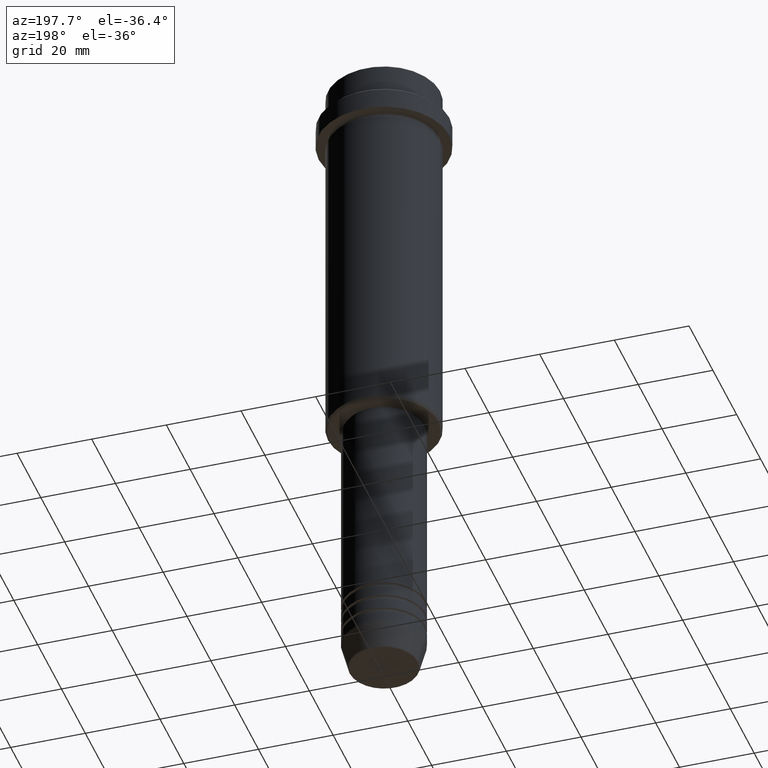
[diagram: clean part render]
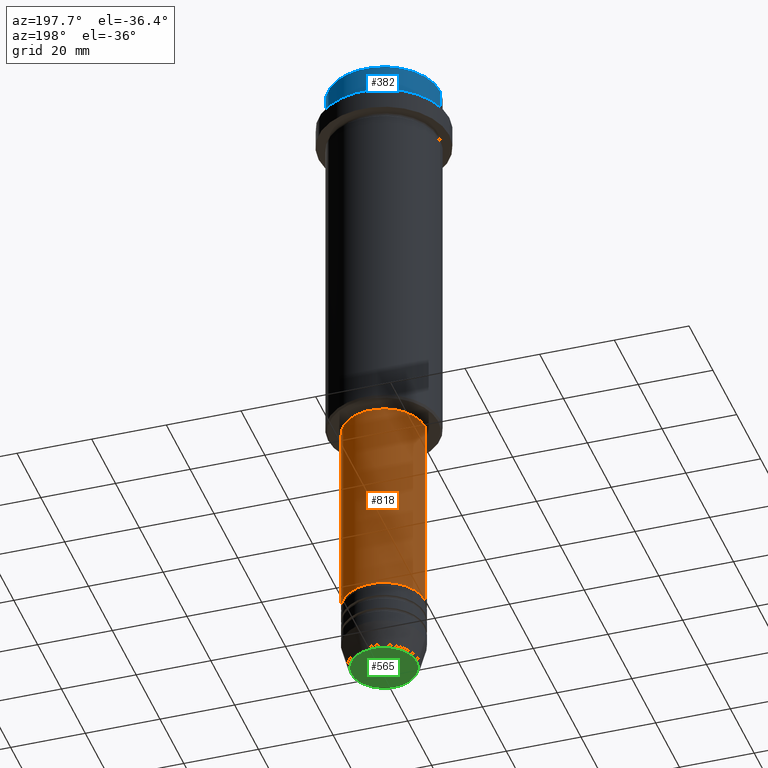
[diagram: same view with three faces highlighted in distinct colors, each labeled with its STEP entity id]
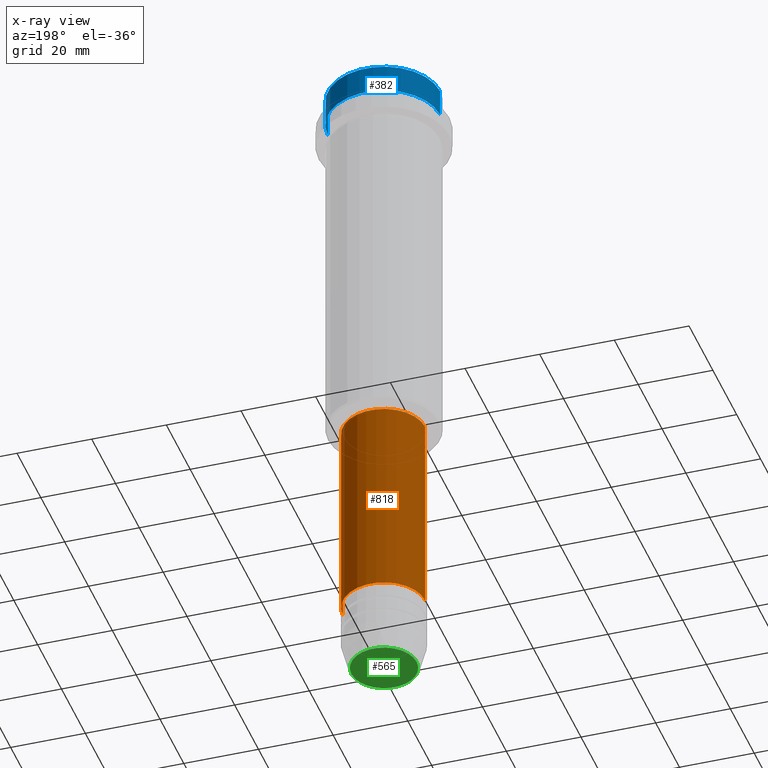
[diagram: x-ray of the same camera — body ghosted, the three highlighted faces saturated]
A machine part, auxiliary view with three faces highlighted in distinct colors.
The next image is the same camera in x-ray (body ghosted, the three faces saturated) — at least one of them is partly hidden behind the body in this view.
Their STEP definitions:

[orange] entity #818 — the highlighted cylindrical surface (partial cylindrical patch) has radius 11 mm, axis along (-0, -0, 1).
#25 = CIRCLE ( 'NONE', #1099, 11.00000000000000000 ) ;
#131 = DIRECTION ( 'NONE',  ( 1.000000000000000000, 0.000000000000000000, 0.000000000000000000 ) ) ;
#176 = VERTEX_POINT ( 'NONE', #394 ) ;
#230 = DIRECTION ( 'NONE',  ( -0.000000000000000000, -0.000000000000000000, 1.000000000000000000 ) ) ;
#235 = VECTOR ( 'NONE', #379, 1000.000000000000000 ) ;
#246 = VERTEX_POINT ( 'NONE', #1207 ) ;
#275 = ORIENTED_EDGE ( 'NONE', *, *, #629, .T. ) ;
#280 = ORIENTED_EDGE ( 'NONE', *, *, #892, .F. ) ;
#299 = DIRECTION ( 'NONE',  ( -0.000000000000000000, -0.000000000000000000, 1.000000000000000000 ) ) ;
#342 = AXIS2_PLACEMENT_3D ( 'NONE', #378, #683, #131 ) ;
#365 = CIRCLE ( 'NONE', #1164, 10.99999999999999822 ) ;
#378 = CARTESIAN_POINT ( 'NONE',  ( 0.000000000000000000, 0.000000000000000000, 0.000000000000000000 ) ) ;
#379 = DIRECTION ( 'NONE',  ( -0.000000000000000000, -0.000000000000000000, 1.000000000000000000 ) ) ;
#394 = CARTESIAN_POINT ( 'NONE',  ( -10.99999999999999822, 1.347111479062088207E-15, -106.0000000000000142 ) ) ;
#395 = DIRECTION ( 'NONE',  ( -0.000000000000000000, -0.000000000000000000, 1.000000000000000000 ) ) ;
#458 = LINE ( 'NONE', #1225, #646 ) ;
#468 = CYLINDRICAL_SURFACE ( 'NONE', #342, 11.00000000000000000 ) ;
#495 = CARTESIAN_POINT ( 'NONE',  ( -11.00000000000000000, 1.347111479062088405E-15, -160.9999999999999147 ) ) ;
#514 = EDGE_CURVE ( 'NONE', #985, #176, #930, .T. ) ;
#576 = ORIENTED_EDGE ( 'NONE', *, *, #1145, .F. ) ;
#629 = EDGE_CURVE ( 'NONE', #1030, #985, #25, .T. ) ;
#646 = VECTOR ( 'NONE', #230, 1000.000000000000000 ) ;
#683 = DIRECTION ( 'NONE',  ( -0.000000000000000000, -0.000000000000000000, 1.000000000000000000 ) ) ;
#715 = CARTESIAN_POINT ( 'NONE',  ( 11.00000000000000000, 0.000000000000000000, -160.9999999999999147 ) ) ;
#759 = DIRECTION ( 'NONE',  ( 1.000000000000000000, 0.000000000000000000, 0.000000000000000000 ) ) ;
#818 = ADVANCED_FACE ( 'NONE', ( #1043 ), #468, .T. ) ;
#883 = ORIENTED_EDGE ( 'NONE', *, *, #514, .T. ) ;
#892 = EDGE_CURVE ( 'NONE', #246, #176, #365, .T. ) ;
#930 = LINE ( 'NONE', #1353, #235 ) ;
#985 = VERTEX_POINT ( 'NONE', #495 ) ;
#1030 = VERTEX_POINT ( 'NONE', #715 ) ;
#1043 = FACE_OUTER_BOUND ( 'NONE', #1066, .T. ) ;
#1066 = EDGE_LOOP ( 'NONE', ( #275, #883, #280, #576 ) ) ;
#1099 = AXIS2_PLACEMENT_3D ( 'NONE', #1103, #299, #1398 ) ;
#1103 = CARTESIAN_POINT ( 'NONE',  ( 0.000000000000000000, 0.000000000000000000, -160.9999999999999147 ) ) ;
#1145 = EDGE_CURVE ( 'NONE', #1030, #246, #458, .T. ) ;
#1164 = AXIS2_PLACEMENT_3D ( 'NONE', #1295, #395, #759 ) ;
#1207 = CARTESIAN_POINT ( 'NONE',  ( 10.99999999999999822, 0.000000000000000000, -106.0000000000000142 ) ) ;
#1225 = CARTESIAN_POINT ( 'NONE',  ( 11.00000000000000000, 0.000000000000000000, 0.000000000000000000 ) ) ;
#1295 = CARTESIAN_POINT ( 'NONE',  ( 0.000000000000000000, 0.000000000000000000, -106.0000000000000142 ) ) ;
#1353 = CARTESIAN_POINT ( 'NONE',  ( -11.00000000000000000, 1.347111479062088405E-15, 0.000000000000000000 ) ) ;
#1398 = DIRECTION ( 'NONE',  ( 1.000000000000000000, 0.000000000000000000, 0.000000000000000000 ) ) ;

[blue] entity #382 — the highlighted cylindrical surface (partial cylindrical patch) has radius 15 mm, axis along (-0, -0, 1).
#86 = AXIS2_PLACEMENT_3D ( 'NONE', #682, #402, #820 ) ;
#87 = EDGE_CURVE ( 'NONE', #840, #1182, #990, .T. ) ;
#111 = DIRECTION ( 'NONE',  ( -0.000000000000000000, -0.000000000000000000, 1.000000000000000000 ) ) ;
#162 = DIRECTION ( 'NONE',  ( 1.000000000000000000, 0.000000000000000000, 0.000000000000000000 ) ) ;
#189 = ORIENTED_EDGE ( 'NONE', *, *, #87, .F. ) ;
#209 = CARTESIAN_POINT ( 'NONE',  ( 15.00000000000000000, 0.000000000000000000, 0.000000000000000000 ) ) ;
#215 = VECTOR ( 'NONE', #1298, 1000.000000000000000 ) ;
#219 = AXIS2_PLACEMENT_3D ( 'NONE', #1027, #335, #162 ) ;
#262 = VECTOR ( 'NONE', #111, 1000.000000000000000 ) ;
#335 = DIRECTION ( 'NONE',  ( 0.000000000000000000, 0.000000000000000000, -1.000000000000000000 ) ) ;
#350 = VERTEX_POINT ( 'NONE', #1128 ) ;
#354 = CYLINDRICAL_SURFACE ( 'NONE', #86, 15.00000000000000000 ) ;
#382 = ADVANCED_FACE ( 'NONE', ( #462 ), #354, .T. ) ;
#402 = DIRECTION ( 'NONE',  ( -0.000000000000000000, -0.000000000000000000, 1.000000000000000000 ) ) ;
#462 = FACE_OUTER_BOUND ( 'NONE', #1345, .T. ) ;
#490 = CARTESIAN_POINT ( 'NONE',  ( -15.00000000000000000, 1.836970198721029589E-15, -0.4999999999999831246 ) ) ;
#512 = VERTEX_POINT ( 'NONE', #490 ) ;
#559 = DIRECTION ( 'NONE',  ( 1.000000000000000000, 0.000000000000000000, 0.000000000000000000 ) ) ;
#616 = EDGE_CURVE ( 'NONE', #512, #1182, #997, .T. ) ;
#631 = CARTESIAN_POINT ( 'NONE',  ( 15.00000000000000000, 0.000000000000000000, -0.4999999999999831246 ) ) ;
#670 = AXIS2_PLACEMENT_3D ( 'NONE', #671, #1107, #559 ) ;
#671 = CARTESIAN_POINT ( 'NONE',  ( 0.000000000000000000, 0.000000000000000000, -7.999999999999998224 ) ) ;
#672 = EDGE_CURVE ( 'NONE', #350, #512, #1067, .T. ) ;
#682 = CARTESIAN_POINT ( 'NONE',  ( 0.000000000000000000, 0.000000000000000000, 0.000000000000000000 ) ) ;
#725 = ORIENTED_EDGE ( 'NONE', *, *, #1354, .T. ) ;
#807 = ORIENTED_EDGE ( 'NONE', *, *, #672, .T. ) ;
#820 = DIRECTION ( 'NONE',  ( 1.000000000000000000, 0.000000000000000000, 0.000000000000000000 ) ) ;
#840 = VERTEX_POINT ( 'NONE', #1183 ) ;
#855 = CARTESIAN_POINT ( 'NONE',  ( -15.00000000000000000, 1.836970198721029589E-15, 0.000000000000000000 ) ) ;
#990 = LINE ( 'NONE', #209, #215 ) ;
#997 = CIRCLE ( 'NONE', #219, 15.00000000000000000 ) ;
#1027 = CARTESIAN_POINT ( 'NONE',  ( 0.000000000000000000, 0.000000000000000000, -0.4999999999999831246 ) ) ;
#1067 = LINE ( 'NONE', #855, #262 ) ;
#1082 = ORIENTED_EDGE ( 'NONE', *, *, #616, .T. ) ;
#1107 = DIRECTION ( 'NONE',  ( -0.000000000000000000, -0.000000000000000000, 1.000000000000000000 ) ) ;
#1128 = CARTESIAN_POINT ( 'NONE',  ( -15.00000000000000000, 1.836970198721029589E-15, -7.999999999999998224 ) ) ;
#1182 = VERTEX_POINT ( 'NONE', #631 ) ;
#1183 = CARTESIAN_POINT ( 'NONE',  ( 15.00000000000000000, 0.000000000000000000, -7.999999999999998224 ) ) ;
#1298 = DIRECTION ( 'NONE',  ( -0.000000000000000000, -0.000000000000000000, 1.000000000000000000 ) ) ;
#1345 = EDGE_LOOP ( 'NONE', ( #725, #807, #1082, #189 ) ) ;
#1354 = EDGE_CURVE ( 'NONE', #840, #350, #1372, .T. ) ;
#1372 = CIRCLE ( 'NONE', #670, 15.00000000000000000 ) ;

[green] entity #565 — the highlighted planar face has unit normal (0, -0, 1).
#75 = ORIENTED_EDGE ( 'NONE', *, *, #814, .T. ) ;
#232 = DIRECTION ( 'NONE',  ( 0.000000000000000000, 0.000000000000000000, -1.000000000000000000 ) ) ;
#250 = CARTESIAN_POINT ( 'NONE',  ( 0.000000000000000000, 0.000000000000000000, -180.0000000000000000 ) ) ;
#373 = PLANE ( 'NONE',  #878 ) ;
#404 = CARTESIAN_POINT ( 'NONE',  ( 0.000000000000000000, 0.000000000000000000, -180.0000000000000000 ) ) ;
#471 = DIRECTION ( 'NONE',  ( 0.000000000000000000, -0.000000000000000000, 1.000000000000000000 ) ) ;
#497 = DIRECTION ( 'NONE',  ( 1.000000000000000000, 0.000000000000000000, 0.000000000000000000 ) ) ;
#503 = FACE_OUTER_BOUND ( 'NONE', #1074, .T. ) ;
#529 = AXIS2_PLACEMENT_3D ( 'NONE', #1337, #232, #1024 ) ;
#565 = ADVANCED_FACE ( 'NONE', ( #503 ), #373, .F. ) ;
#603 = CARTESIAN_POINT ( 'NONE',  ( 8.740692158992663607, 0.000000000000000000, -180.0000000000000000 ) ) ;
#703 = EDGE_CURVE ( 'NONE', #1381, #833, #1056, .T. ) ;
#732 = ORIENTED_EDGE ( 'NONE', *, *, #703, .T. ) ;
#786 = AXIS2_PLACEMENT_3D ( 'NONE', #404, #839, #1271 ) ;
#800 = CIRCLE ( 'NONE', #529, 8.740692158992663607 ) ;
#814 = EDGE_CURVE ( 'NONE', #833, #1381, #800, .T. ) ;
#833 = VERTEX_POINT ( 'NONE', #603 ) ;
#839 = DIRECTION ( 'NONE',  ( 0.000000000000000000, 0.000000000000000000, -1.000000000000000000 ) ) ;
#878 = AXIS2_PLACEMENT_3D ( 'NONE', #250, #471, #497 ) ;
#1024 = DIRECTION ( 'NONE',  ( 1.000000000000000000, 0.000000000000000000, 0.000000000000000000 ) ) ;
#1026 = CARTESIAN_POINT ( 'NONE',  ( -8.740692158992663607, 1.099999016768740442E-15, -180.0000000000000000 ) ) ;
#1056 = CIRCLE ( 'NONE', #786, 8.740692158992663607 ) ;
#1074 = EDGE_LOOP ( 'NONE', ( #75, #732 ) ) ;
#1271 = DIRECTION ( 'NONE',  ( 1.000000000000000000, 0.000000000000000000, 0.000000000000000000 ) ) ;
#1337 = CARTESIAN_POINT ( 'NONE',  ( 0.000000000000000000, 0.000000000000000000, -180.0000000000000000 ) ) ;
#1381 = VERTEX_POINT ( 'NONE', #1026 ) ;